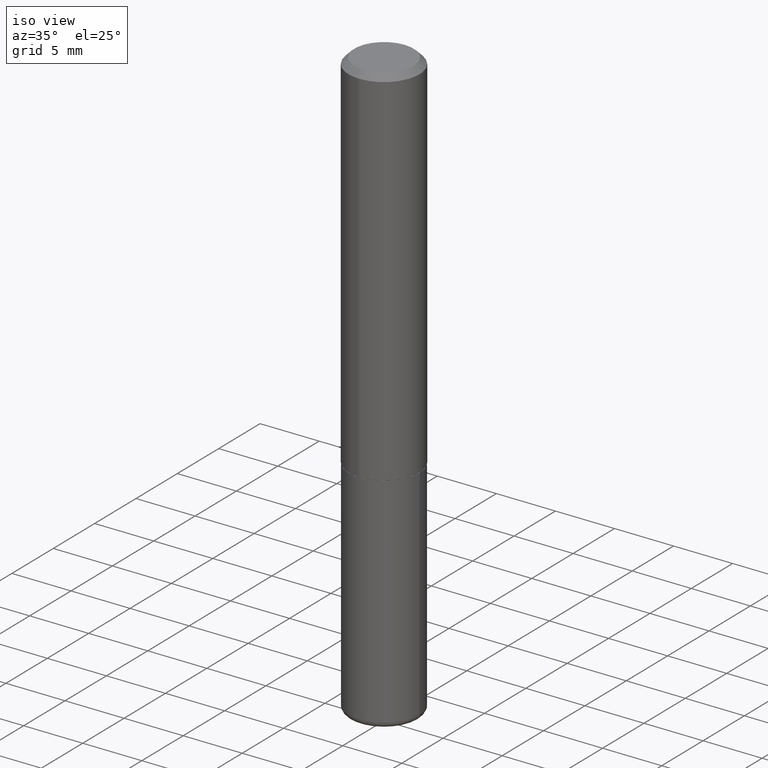
[diagram: clean part render]
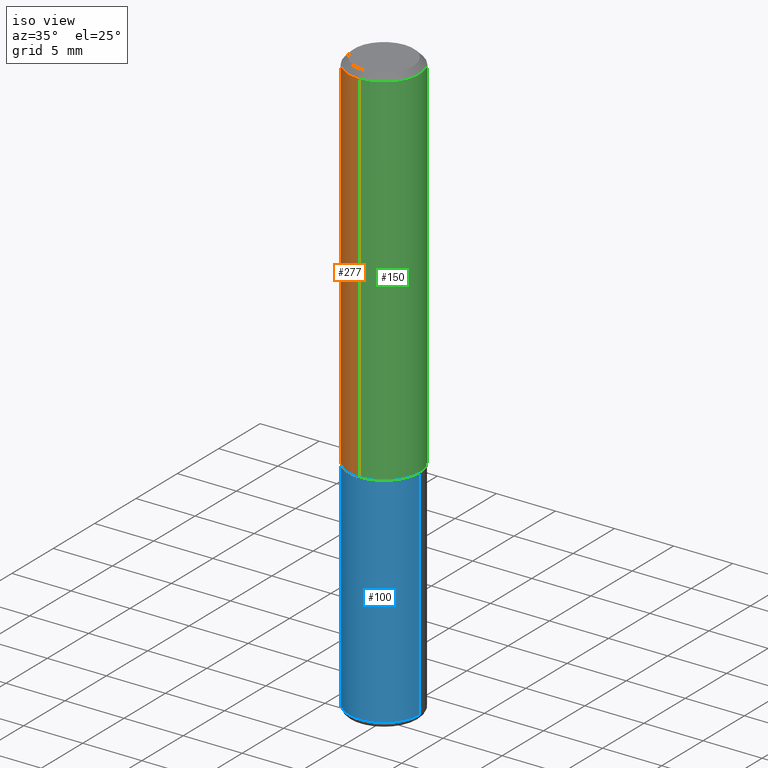
[diagram: same view with three faces highlighted in distinct colors, each labeled with its STEP entity id]
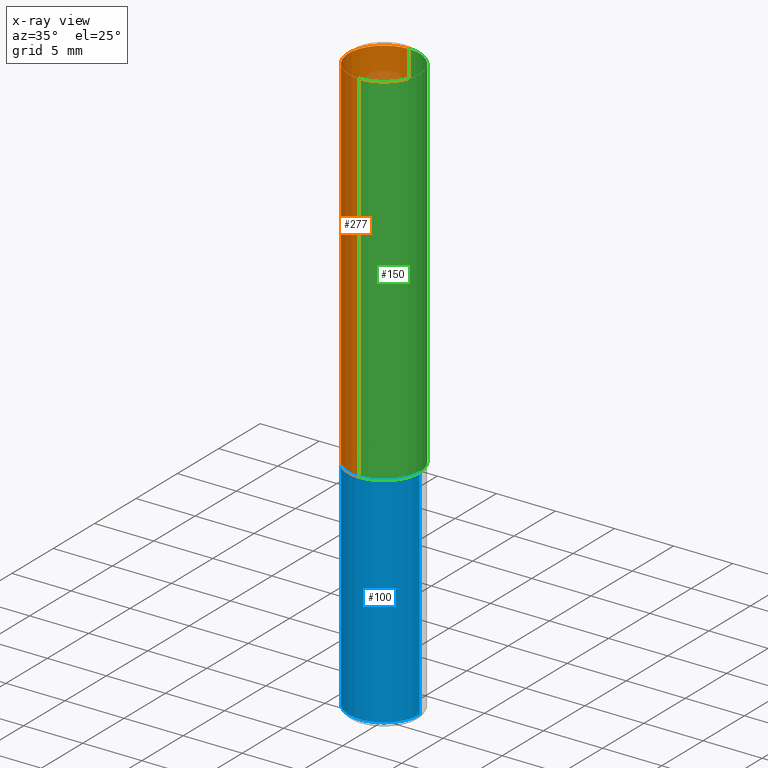
[diagram: x-ray of the same camera — body ghosted, the three highlighted faces saturated]
A machine part, iso view with three faces highlighted in distinct colors.
The next image is the same camera in x-ray (body ghosted, the three faces saturated) — at least one of them is partly hidden behind the body in this view.
Their STEP definitions:

[orange] entity #277 — the highlighted cylindrical surface (partial cylindrical patch) has radius 2.9997 mm, axis along (-0, 0, 1).
#1 = VERTEX_POINT ( 'NONE', #366 ) ;
#4 = DIRECTION ( 'NONE',  ( -2.444963449753266719E-29, 3.492205038016684672E-15, 1.000000000000000000 ) ) ;
#8 = EDGE_CURVE ( 'NONE', #236, #1, #183, .T. ) ;
#22 = VECTOR ( 'NONE', #117, 39.37007874015748143 ) ;
#39 = VECTOR ( 'NONE', #4, 39.37007874015748143 ) ;
#40 = CIRCLE ( 'NONE', #377, 0.1181000000000001632 ) ;
#45 = DIRECTION ( 'NONE',  ( -2.444963449753266719E-29, 3.492205038016685066E-15, 1.000000000000000000 ) ) ;
#61 = CARTESIAN_POINT ( 'NONE',  ( 0.000000000000000000, 0.000000000000000000, 0.000000000000000000 ) ) ;
#89 = AXIS2_PLACEMENT_3D ( 'NONE', #61, #331, #204 ) ;
#99 = FACE_OUTER_BOUND ( 'NONE', #124, .T. ) ;
#117 = DIRECTION ( 'NONE',  ( -2.444963449753266719E-29, 3.492205038016684672E-15, 1.000000000000000000 ) ) ;
#124 = EDGE_LOOP ( 'NONE', ( #148, #219, #364, #327 ) ) ;
#129 = EDGE_CURVE ( 'NONE', #236, #322, #40, .T. ) ;
#148 = ORIENTED_EDGE ( 'NONE', *, *, #8, .F. ) ;
#155 = CARTESIAN_POINT ( 'NONE',  ( 2.981632926974109252E-29, -4.258744043861347437E-15, -1.219500000000000028 ) ) ;
#183 = LINE ( 'NONE', #336, #39 ) ;
#187 = AXIS2_PLACEMENT_3D ( 'NONE', #270, #245, #274 ) ;
#189 = DIRECTION ( 'NONE',  ( -6.982962677686265922E-15, -1.000000000000000000, 3.469747663417772269E-15 ) ) ;
#198 = EDGE_CURVE ( 'NONE', #1, #395, #325, .T. ) ;
#204 = DIRECTION ( 'NONE',  ( -6.982962677686265922E-15, -1.000000000000000000, 3.492205038016685461E-15 ) ) ;
#216 = CARTESIAN_POINT ( 'NONE',  ( -8.102248135368172434E-16, -0.1181000000000000660, -0.01999999999999961184 ) ) ;
#219 = ORIENTED_EDGE ( 'NONE', *, *, #129, .T. ) ;
#227 = CYLINDRICAL_SURFACE ( 'NONE', #89, 0.1181000000000000799 ) ;
#236 = VERTEX_POINT ( 'NONE', #384 ) ;
#245 = DIRECTION ( 'NONE',  ( -2.444963449753266719E-29, 3.492205038016685066E-15, 1.000000000000000000 ) ) ;
#270 = CARTESIAN_POINT ( 'NONE',  ( 4.889926899506539218E-31, -6.984410076033377775E-17, -0.02000000000000002470 ) ) ;
#274 = DIRECTION ( 'NONE',  ( -6.982962677686265922E-15, -1.000000000000000000, 3.505890868245046092E-15 ) ) ;
#277 = ADVANCED_FACE ( 'NONE', ( #99 ), #227, .T. ) ;
#322 = VERTEX_POINT ( 'NONE', #363 ) ;
#325 = CIRCLE ( 'NONE', #187, 0.1180999999999999966 ) ;
#327 = ORIENTED_EDGE ( 'NONE', *, *, #198, .F. ) ;
#331 = DIRECTION ( 'NONE',  ( -2.444963449753266719E-29, 3.492205038016685066E-15, 1.000000000000000000 ) ) ;
#336 = CARTESIAN_POINT ( 'NONE',  ( 8.391509709326787887E-16, 0.1181000000000000799, -4.124294149897708260E-16 ) ) ;
#363 = CARTESIAN_POINT ( 'NONE',  ( -8.246878922347193706E-16, -0.1181000000000044237, -1.219499999999999584 ) ) ;
#364 = ORIENTED_EDGE ( 'NONE', *, *, #406, .T. ) ;
#366 = CARTESIAN_POINT ( 'NONE',  ( 8.246878922347484598E-16, 0.1180999999999999273, -0.02000000000000044104 ) ) ;
#374 = CARTESIAN_POINT ( 'NONE',  ( -8.246878922347485584E-16, -0.1181000000000000799, 4.124294149897708260E-16 ) ) ;
#377 = AXIS2_PLACEMENT_3D ( 'NONE', #155, #45, #189 ) ;
#384 = CARTESIAN_POINT ( 'NONE',  ( 8.391509709326943687E-16, 0.1180999999999959166, -1.219500000000000473 ) ) ;
#395 = VERTEX_POINT ( 'NONE', #216 ) ;
#399 = LINE ( 'NONE', #374, #22 ) ;
#406 = EDGE_CURVE ( 'NONE', #322, #395, #399, .T. ) ;

[blue] entity #100 — the highlighted cylindrical surface (partial cylindrical patch) has radius 2.9997 mm, axis along (-0, 0, 1).
#6 = AXIS2_PLACEMENT_3D ( 'NONE', #348, #55, #346 ) ;
#12 = CARTESIAN_POINT ( 'NONE',  ( 0.000000000000000000, 0.000000000000000000, 0.000000000000000000 ) ) ;
#13 = DIRECTION ( 'NONE',  ( 1.000000000000000000, -6.982962677686265133E-15, 0.000000000000000000 ) ) ;
#16 = AXIS2_PLACEMENT_3D ( 'NONE', #12, #48, #80 ) ;
#25 = VERTEX_POINT ( 'NONE', #144 ) ;
#30 = ORIENTED_EDGE ( 'NONE', *, *, #78, .F. ) ;
#48 = DIRECTION ( 'NONE',  ( -2.445468806185136597E-29, 3.491481338843145583E-15, 1.000000000000000000 ) ) ;
#50 = DIRECTION ( 'NONE',  ( -2.445468806185136597E-29, 3.491481338843145583E-15, 1.000000000000000000 ) ) ;
#55 = DIRECTION ( 'NONE',  ( -2.445468806185136597E-29, 3.491481338843145583E-15, 1.000000000000000000 ) ) ;
#78 = EDGE_CURVE ( 'NONE', #25, #379, #116, .T. ) ;
#80 = DIRECTION ( 'NONE',  ( 1.000000000000000000, -6.982962677686266711E-15, 4.876176775795936353E-29 ) ) ;
#85 = CARTESIAN_POINT ( 'NONE',  ( -0.1180999999999999966, -4.693624932665111972E-15, -1.220499999999999918 ) ) ;
#95 = EDGE_CURVE ( 'NONE', #25, #110, #281, .T. ) ;
#100 = ADVANCED_FACE ( 'NONE', ( #401 ), #341, .T. ) ;
#102 = VERTEX_POINT ( 'NONE', #212 ) ;
#103 = CARTESIAN_POINT ( 'NONE',  ( 0.1180999999999999966, -8.246878922347480654E-16, 5.758764772215000440E-30 ) ) ;
#110 = VERTEX_POINT ( 'NONE', #247 ) ;
#113 = CARTESIAN_POINT ( 'NONE',  ( -0.1180999999999999966, 8.391509709326782957E-16, -5.809262341591043784E-30 ) ) ;
#116 = LINE ( 'NONE', #113, #408 ) ;
#135 = AXIS2_PLACEMENT_3D ( 'NONE', #400, #50, #13 ) ;
#144 = CARTESIAN_POINT ( 'NONE',  ( -0.1180999999999999411, -5.965047862204843903E-15, -1.948800000000000088 ) ) ;
#146 = VECTOR ( 'NONE', #323, 39.37007874015748143 ) ;
#202 = LINE ( 'NONE', #103, #146 ) ;
#212 = CARTESIAN_POINT ( 'NONE',  ( 0.1180999999999999966, -5.086040866292807290E-15, -1.220499999999999918 ) ) ;
#223 = EDGE_CURVE ( 'NONE', #379, #102, #416, .T. ) ;
#247 = CARTESIAN_POINT ( 'NONE',  ( 0.1180999999999999411, -7.628886725372270363E-15, -1.948800000000000088 ) ) ;
#262 = ORIENTED_EDGE ( 'NONE', *, *, #354, .T. ) ;
#281 = CIRCLE ( 'NONE', #135, 0.1180999999999999966 ) ;
#290 = ORIENTED_EDGE ( 'NONE', *, *, #223, .F. ) ;
#323 = DIRECTION ( 'NONE',  ( -2.445468806185136877E-29, 3.491481338843145188E-15, 1.000000000000000000 ) ) ;
#341 = CYLINDRICAL_SURFACE ( 'NONE', #16, 0.1180999999999999966 ) ;
#342 = DIRECTION ( 'NONE',  ( -2.445468806185136877E-29, 3.491481338843145188E-15, 1.000000000000000000 ) ) ;
#346 = DIRECTION ( 'NONE',  ( 1.000000000000000000, -6.982962677686265133E-15, 0.000000000000000000 ) ) ;
#348 = CARTESIAN_POINT ( 'NONE',  ( 2.984694677948959472E-29, -4.261352974058059028E-15, -1.220499999999999918 ) ) ;
#354 = EDGE_CURVE ( 'NONE', #110, #102, #202, .T. ) ;
#357 = EDGE_LOOP ( 'NONE', ( #30, #386, #262, #290 ) ) ;
#379 = VERTEX_POINT ( 'NONE', #85 ) ;
#386 = ORIENTED_EDGE ( 'NONE', *, *, #95, .T. ) ;
#400 = CARTESIAN_POINT ( 'NONE',  ( 4.765729609493594537E-29, -6.804198833137522100E-15, -1.948800000000000088 ) ) ;
#401 = FACE_OUTER_BOUND ( 'NONE', #357, .T. ) ;
#408 = VECTOR ( 'NONE', #342, 39.37007874015748143 ) ;
#416 = CIRCLE ( 'NONE', #6, 0.1180999999999999966 ) ;

[green] entity #150 — the highlighted cylindrical surface (partial cylindrical patch) has radius 2.9997 mm, axis along (-0, 0, 1).
#1 = VERTEX_POINT ( 'NONE', #366 ) ;
#4 = DIRECTION ( 'NONE',  ( -2.444963449753266719E-29, 3.492205038016684672E-15, 1.000000000000000000 ) ) ;
#8 = EDGE_CURVE ( 'NONE', #236, #1, #183, .T. ) ;
#11 = DIRECTION ( 'NONE',  ( -2.444963449753266719E-29, 3.492205038016685066E-15, 1.000000000000000000 ) ) ;
#14 = CYLINDRICAL_SURFACE ( 'NONE', #220, 0.1181000000000000799 ) ;
#22 = VECTOR ( 'NONE', #117, 39.37007874015748143 ) ;
#39 = VECTOR ( 'NONE', #4, 39.37007874015748143 ) ;
#76 = ORIENTED_EDGE ( 'NONE', *, *, #8, .T. ) ;
#77 = DIRECTION ( 'NONE',  ( -6.982962677686265922E-15, -1.000000000000000000, 3.492205038016685461E-15 ) ) ;
#97 = CIRCLE ( 'NONE', #312, 0.1181000000000001632 ) ;
#117 = DIRECTION ( 'NONE',  ( -2.444963449753266719E-29, 3.492205038016684672E-15, 1.000000000000000000 ) ) ;
#121 = DIRECTION ( 'NONE',  ( -2.444963449753266719E-29, 3.492205038016685066E-15, 1.000000000000000000 ) ) ;
#136 = EDGE_LOOP ( 'NONE', ( #201, #76, #229, #358 ) ) ;
#143 = CARTESIAN_POINT ( 'NONE',  ( 4.889926899506539218E-31, -6.984410076033377775E-17, -0.02000000000000002470 ) ) ;
#150 = ADVANCED_FACE ( 'NONE', ( #278 ), #14, .T. ) ;
#171 = EDGE_CURVE ( 'NONE', #322, #236, #97, .T. ) ;
#183 = LINE ( 'NONE', #336, #39 ) ;
#201 = ORIENTED_EDGE ( 'NONE', *, *, #171, .T. ) ;
#216 = CARTESIAN_POINT ( 'NONE',  ( -8.102248135368172434E-16, -0.1181000000000000660, -0.01999999999999961184 ) ) ;
#220 = AXIS2_PLACEMENT_3D ( 'NONE', #275, #121, #77 ) ;
#229 = ORIENTED_EDGE ( 'NONE', *, *, #321, .F. ) ;
#236 = VERTEX_POINT ( 'NONE', #384 ) ;
#237 = DIRECTION ( 'NONE',  ( -6.982962677686265922E-15, -1.000000000000000000, 3.505890868245046092E-15 ) ) ;
#263 = DIRECTION ( 'NONE',  ( -2.444963449753266719E-29, 3.492205038016685066E-15, 1.000000000000000000 ) ) ;
#275 = CARTESIAN_POINT ( 'NONE',  ( 0.000000000000000000, 0.000000000000000000, 0.000000000000000000 ) ) ;
#278 = FACE_OUTER_BOUND ( 'NONE', #136, .T. ) ;
#312 = AXIS2_PLACEMENT_3D ( 'NONE', #313, #11, #404 ) ;
#313 = CARTESIAN_POINT ( 'NONE',  ( 2.981632926974109252E-29, -4.258744043861347437E-15, -1.219500000000000028 ) ) ;
#321 = EDGE_CURVE ( 'NONE', #395, #1, #391, .T. ) ;
#322 = VERTEX_POINT ( 'NONE', #363 ) ;
#336 = CARTESIAN_POINT ( 'NONE',  ( 8.391509709326787887E-16, 0.1181000000000000799, -4.124294149897708260E-16 ) ) ;
#358 = ORIENTED_EDGE ( 'NONE', *, *, #406, .F. ) ;
#363 = CARTESIAN_POINT ( 'NONE',  ( -8.246878922347193706E-16, -0.1181000000000044237, -1.219499999999999584 ) ) ;
#366 = CARTESIAN_POINT ( 'NONE',  ( 8.246878922347484598E-16, 0.1180999999999999273, -0.02000000000000044104 ) ) ;
#374 = CARTESIAN_POINT ( 'NONE',  ( -8.246878922347485584E-16, -0.1181000000000000799, 4.124294149897708260E-16 ) ) ;
#384 = CARTESIAN_POINT ( 'NONE',  ( 8.391509709326943687E-16, 0.1180999999999959166, -1.219500000000000473 ) ) ;
#391 = CIRCLE ( 'NONE', #403, 0.1180999999999999966 ) ;
#395 = VERTEX_POINT ( 'NONE', #216 ) ;
#399 = LINE ( 'NONE', #374, #22 ) ;
#403 = AXIS2_PLACEMENT_3D ( 'NONE', #143, #263, #237 ) ;
#404 = DIRECTION ( 'NONE',  ( -6.982962677686265922E-15, -1.000000000000000000, 3.469747663417772269E-15 ) ) ;
#406 = EDGE_CURVE ( 'NONE', #322, #395, #399, .T. ) ;